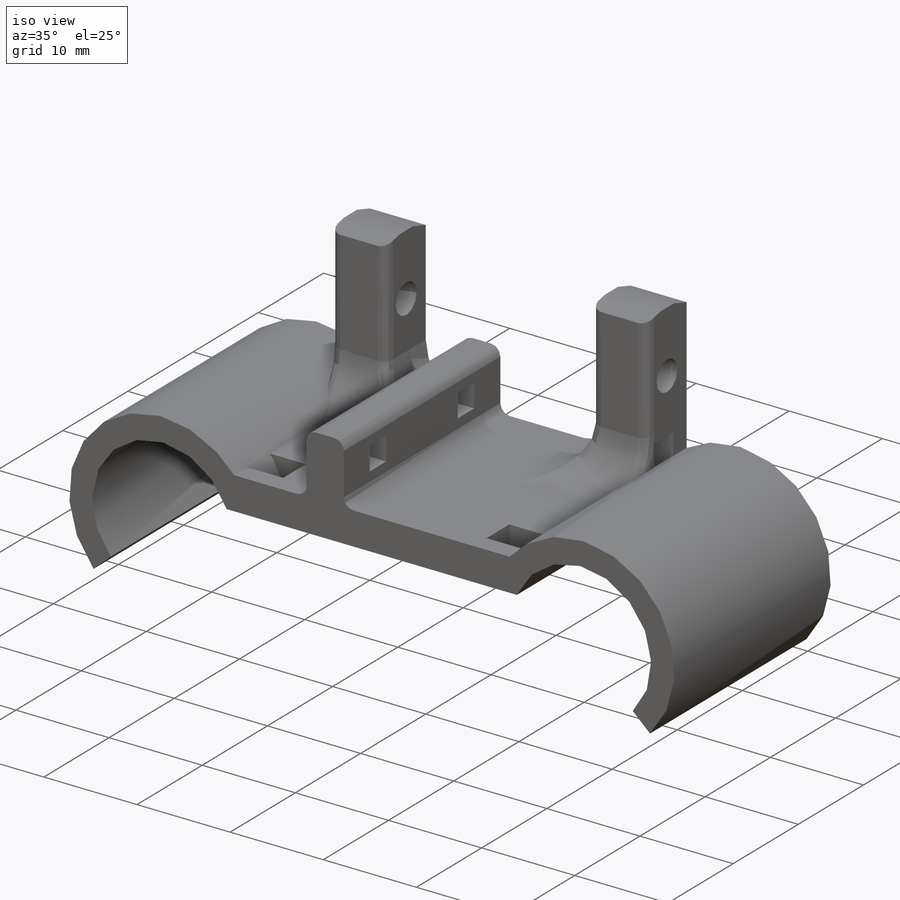
[diagram: iso view]
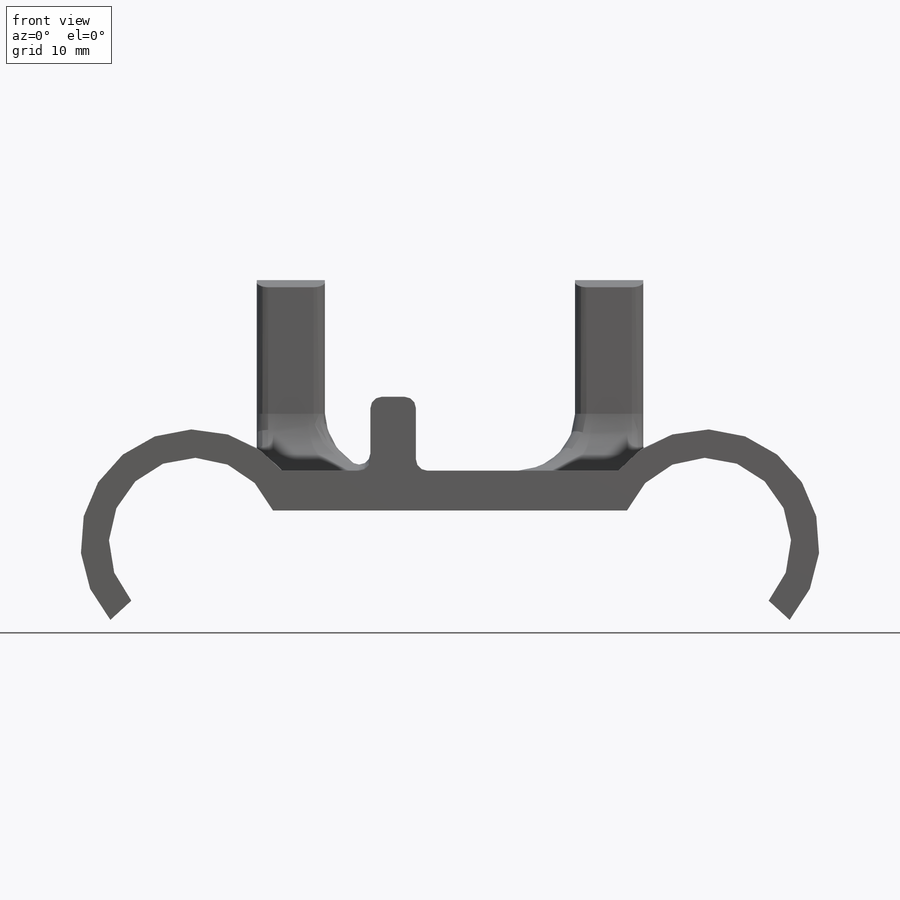
[diagram: front view]
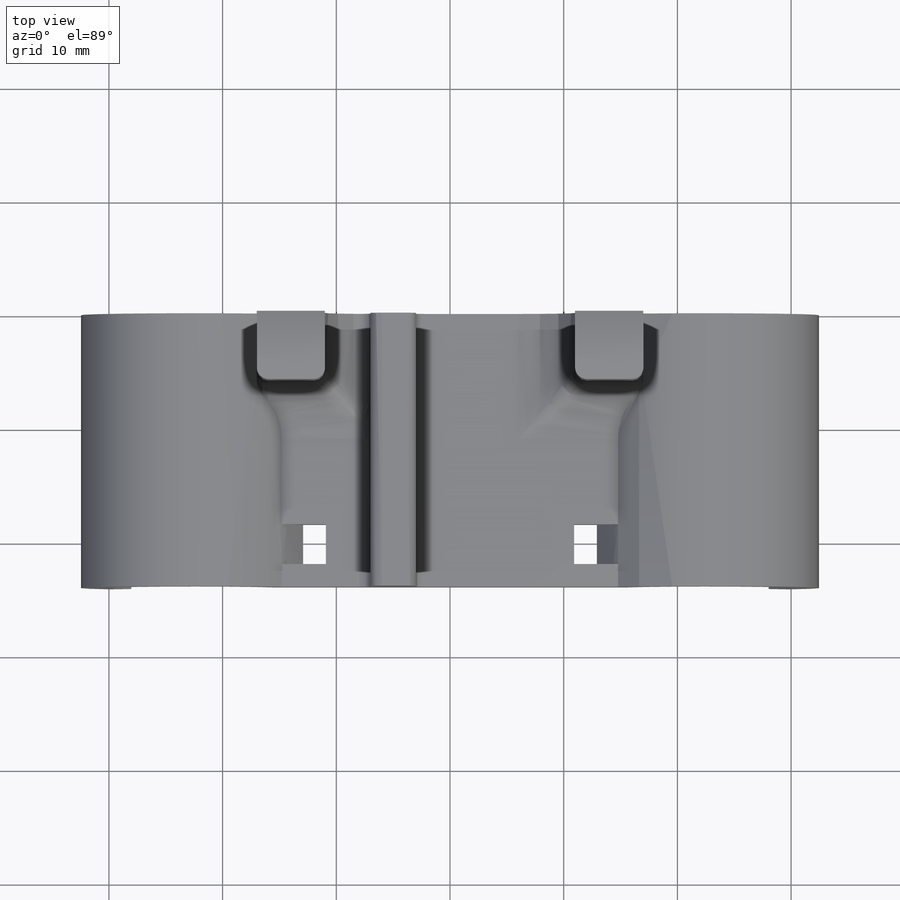
[diagram: top view]
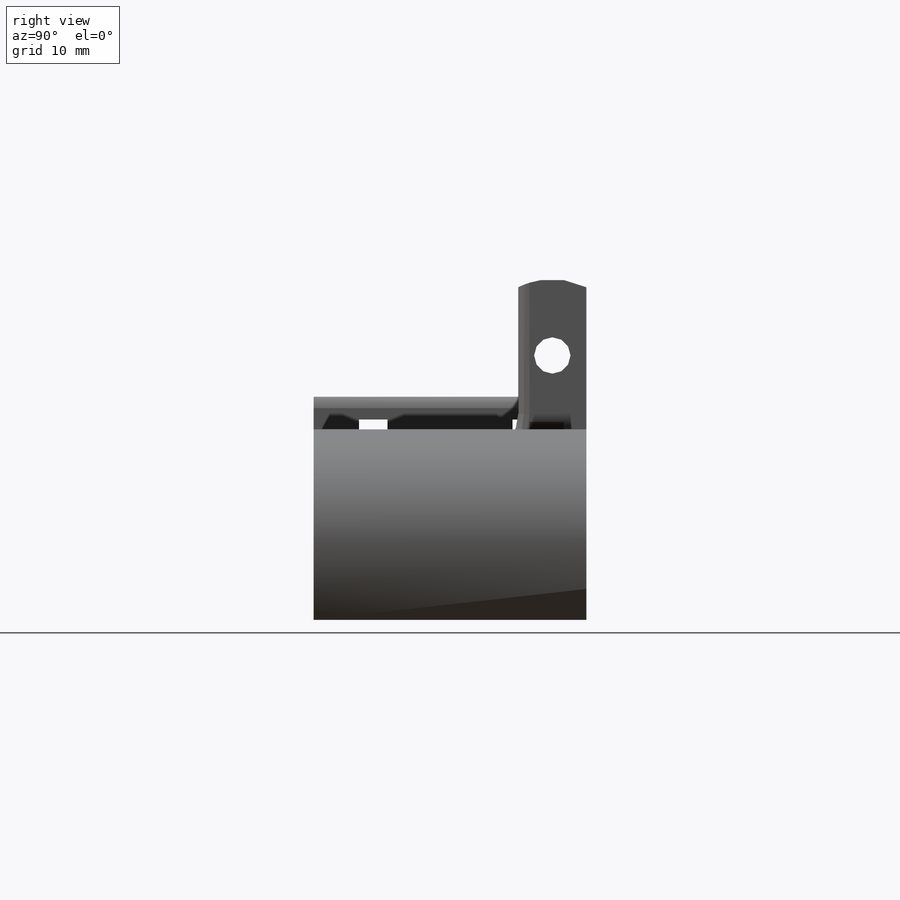
[diagram: right view]
SOLIDWORKS PART (.sldprt)
format: sldprt  version: not decoded by parser v0  size: 481,792 bytes
history: native  units: mm
features: sketch x11, mirror x3, fillet x3, hole x2, material x1, cut_extrude x1, pattern_linear x1 (+11 scaffold rows collapsed)
feature tree (33):
  scaffold x11  (default folders/planes/origin — collapsed)
  material  "Material <not specified>"
  sketch  "Sketch1"  dims[c1.D2=7.5mm c1.D1=22.5mm c1.D3=~4.480323mm c2.D3=135.0deg c2.D4=7.9mm c3.D4=67.5deg c3.D3=7.9mm c4.D3=90.0deg c5.D3=~3.023199mm c6.D3=200.0deg c6.D1=24.0mm c6.D5=2.5mm c6.D6=1.0mm c6.D7=5.0mm]
  sketch  "Sketch2"  dims[D5=3.5mm D6=1.0mm D7=5.0mm]
  sketch  "Sketch5"  dims[D1=2.0mm]
  cut_extrude  "Cut-Upper Zip Tie"  Depth=3.5mm
  mirror  "Mirror-Cup And Straight"
  sketch  "Sketch6"  dims[c1.D1=6.0mm c1.D2=18.5mm c2.D1=6.0mm c2.D19=11.0mm]
  sketch  "Sketch7"  dims[D2=3.2mm D1=16.5mm D3=2.0mm]
  hole  "Cut-Rod Screw Hole"  [1 undecoded]
  sketch  "Sketch8"  dims[D1=4.0mm]
  mirror  "Mirror-Rod Attachment"
  fillet  "Fillet1"  Radius=5mm
  fillet  "Fillet2"  Radius=1mm
  sketch  "Sketch9"  dims[c1.D1=10.0mm c2.D1=4.0mm c2.D19=3.0mm]
  sketch  "Sketch10"  dims[c1.D1=2.5mm c1.D2=1.6mm c1.D3=4.0mm c2.D2=2.0mm]
  hole  "Cut-Spectra Hole"  [1 undecoded]
  pattern_linear  "LPattern-Spectra Holes"  Count1=1 Count2=2 Spacing1=4mm Spacing2=13.5mm
  fillet  "Fillet3"  Radius=1mm
  sketch  "Sketch11"  dims[c1.D1=2.0mm c2.D1=3.0mm c2.D19=2.0mm]
  mirror  "Mirror-Lower Zip Tie"
  sketch  "Sketch13"  dims[c1.D1=7.0mm c1.D2=13.0mm c2.D1=3.5mm]
  sketch  "Sketch12"  dims[c1.D1=5.0mm c2.D1=2.5mm]
decode coverage: 16 of 21 modeling features carry decoded parameters
note: ~ marks probable driven/reference dimensions
note: 2 parameter values undecoded
note: suppression state not decoded; provenance and decode notes live in map.json
